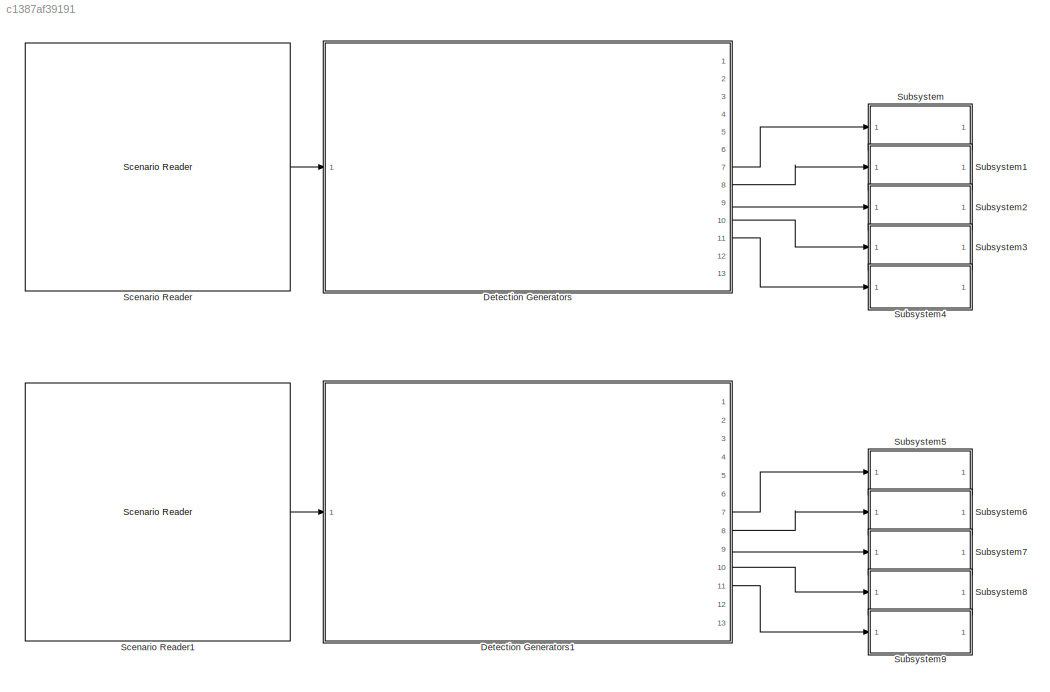
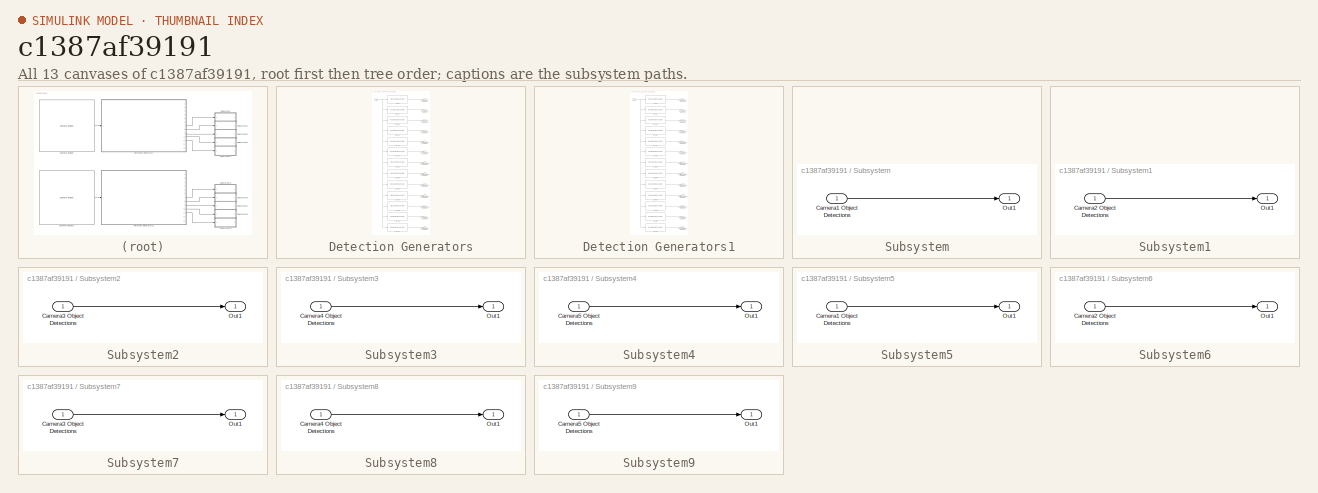
[diagram: thumbnail index - all 13 canvases of the model, root first then tree order]
MODEL slx_c1387af39191
KIND model
CONFIG AbsTol = auto
CONFIG EnableMultiTasking = off
CONFIG FixedStep = auto
CONFIG MaxStep = auto
CONFIG MinStep = auto
CONFIG RelTol = 1e-3
CONFIG SampleTimeConstraint = Unconstrained
CONFIG Solver = FixedStepDiscrete
CONFIG SolverName = FixedStepDiscrete
CONFIG StartTime = 0.0
CONFIG StopTime = 20
WORKSPACE source: mxarray member
WORKSPACE firstWarning = 0
WORKSPACE originalScenarioChecksum = '4AECC2AEC181DD8EA774641D9E64C004'
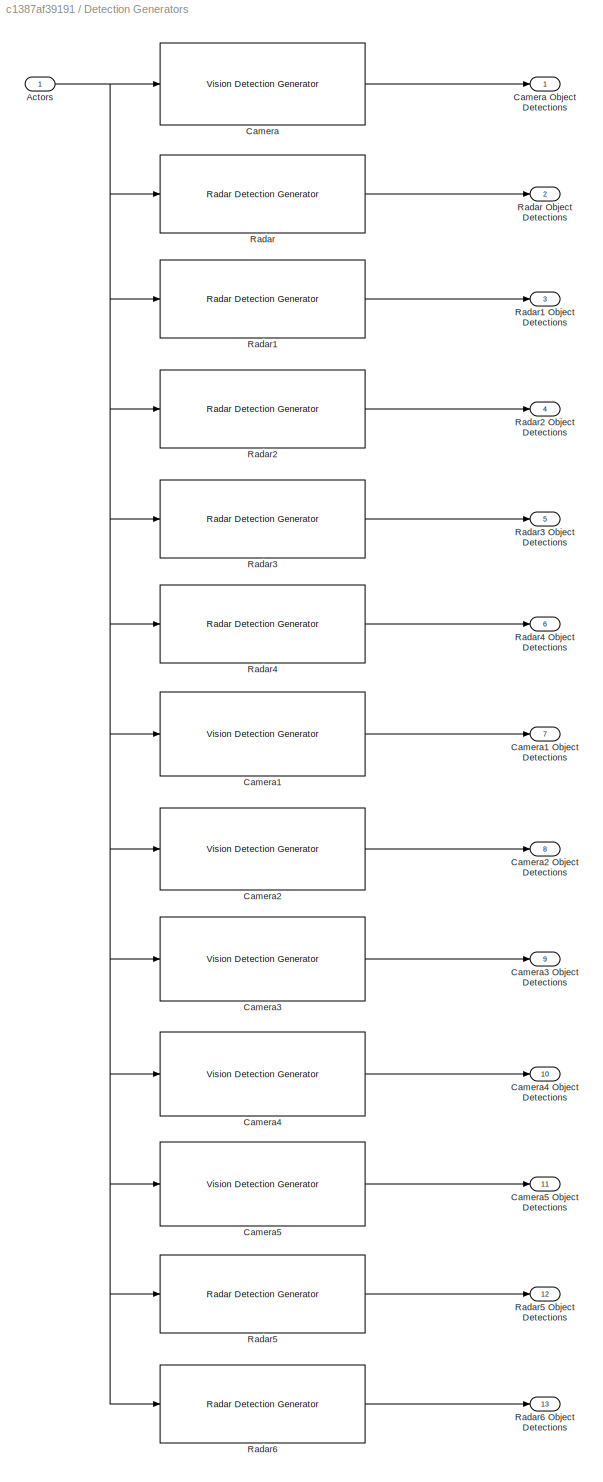
BLOCK [SubSystem] Detection Generators
  Ports = [1, 13]
  RequestExecContextInheritance = off
BLOCK [Inport] Detection Generators/Actors
BLOCK [Reference] Detection Generators/Camera  REF=drivingscenarioandsensors/Vision Detection Generator
  Ports = [1, 1]
  SourceBlock = drivingscenarioandsensors/Vision Detection Generator
  SourceProductBaseCode = DR
  SourceType = visionDetectionGenerator
BLOCK [Outport] Detection Generators/Camera Object Detections
BLOCK [Reference] Detection Generators/Camera1  REF=drivingscenarioandsensors/Vision Detection Generator
  Ports = [1, 1]
  SourceBlock = drivingscenarioandsensors/Vision Detection Generator
  SourceProductBaseCode = DR
  SourceType = visionDetectionGenerator
BLOCK [Outport] Detection Generators/Camera1 Object Detections
  Port = 7
BLOCK [Reference] Detection Generators/Camera2  REF=drivingscenarioandsensors/Vision Detection Generator
  Ports = [1, 1]
  SourceBlock = drivingscenarioandsensors/Vision Detection Generator
  SourceProductBaseCode = DR
  SourceType = visionDetectionGenerator
BLOCK [Outport] Detection Generators/Camera2 Object Detections
  Port = 8
BLOCK [Reference] Detection Generators/Camera3  REF=drivingscenarioandsensors/Vision Detection Generator
  Ports = [1, 1]
  SourceBlock = drivingscenarioandsensors/Vision Detection Generator
  SourceProductBaseCode = DR
  SourceType = visionDetectionGenerator
BLOCK [Outport] Detection Generators/Camera3 Object Detections
  Port = 9
BLOCK [Reference] Detection Generators/Camera4  REF=drivingscenarioandsensors/Vision Detection Generator
  Ports = [1, 1]
  SourceBlock = drivingscenarioandsensors/Vision Detection Generator
  SourceProductBaseCode = DR
  SourceType = visionDetectionGenerator
BLOCK [Outport] Detection Generators/Camera4 Object Detections
  Port = 10
BLOCK [Reference] Detection Generators/Camera5  REF=drivingscenarioandsensors/Vision Detection Generator
  Ports = [1, 1]
  SourceBlock = drivingscenarioandsensors/Vision Detection Generator
  SourceProductBaseCode = DR
  SourceType = visionDetectionGenerator
BLOCK [Outport] Detection Generators/Camera5 Object Detections
  Port = 11
BLOCK [Reference] Detection Generators/Radar  REF=drivingscenarioandsensors/Radar Detection Generator
  Ports = [1, 1]
  SourceBlock = drivingscenarioandsensors/Radar Detection Generator
  SourceProductBaseCode = DR
  SourceType = radarDetectionGenerator
BLOCK [Outport] Detection Generators/Radar Object Detections
  Port = 2
BLOCK [Reference] Detection Generators/Radar1  REF=drivingscenarioandsensors/Radar Detection Generator
  Ports = [1, 1]
  SourceBlock = drivingscenarioandsensors/Radar Detection Generator
  SourceProductBaseCode = DR
  SourceType = radarDetectionGenerator
BLOCK [Outport] Detection Generators/Radar1 Object Detections
  Port = 3
BLOCK [Reference] Detection Generators/Radar2  REF=drivingscenarioandsensors/Radar Detection Generator
  Ports = [1, 1]
  SourceBlock = drivingscenarioandsensors/Radar Detection Generator
  SourceProductBaseCode = DR
  SourceType = radarDetectionGenerator
BLOCK [Outport] Detection Generators/Radar2 Object Detections
  Port = 4
BLOCK [Reference] Detection Generators/Radar3  REF=drivingscenarioandsensors/Radar Detection Generator
  Ports = [1, 1]
  SourceBlock = drivingscenarioandsensors/Radar Detection Generator
  SourceProductBaseCode = DR
  SourceType = radarDetectionGenerator
BLOCK [Outport] Detection Generators/Radar3 Object Detections
  Port = 5
BLOCK [Reference] Detection Generators/Radar4  REF=drivingscenarioandsensors/Radar Detection Generator
  Ports = [1, 1]
  SourceBlock = drivingscenarioandsensors/Radar Detection Generator
  SourceProductBaseCode = DR
  SourceType = radarDetectionGenerator
BLOCK [Outport] Detection Generators/Radar4 Object Detections
  Port = 6
BLOCK [Reference] Detection Generators/Radar5  REF=drivingscenarioandsensors/Radar Detection Generator
  Ports = [1, 1]
  SourceBlock = drivingscenarioandsensors/Radar Detection Generator
  SourceProductBaseCode = DR
  SourceType = radarDetectionGenerator
BLOCK [Outport] Detection Generators/Radar5 Object Detections
  Port = 12
BLOCK [Reference] Detection Generators/Radar6  REF=drivingscenarioandsensors/Radar Detection Generator
  Ports = [1, 1]
  SourceBlock = drivingscenarioandsensors/Radar Detection Generator
  SourceProductBaseCode = DR
  SourceType = radarDetectionGenerator
BLOCK [Outport] Detection Generators/Radar6 Object Detections
  Port = 13
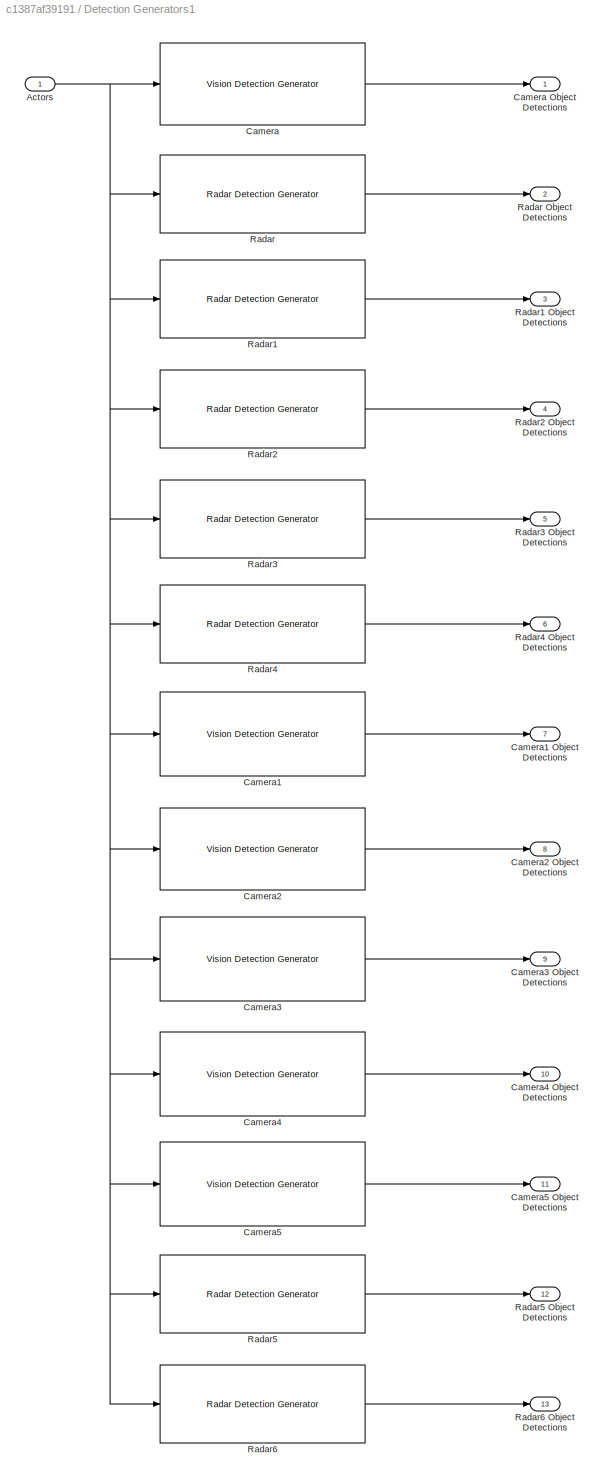
BLOCK [SubSystem] Detection Generators1
  Ports = [1, 13]
  RequestExecContextInheritance = off
BLOCK [Inport] Detection Generators1/Actors
BLOCK [Reference] Detection Generators1/Camera  REF=drivingscenarioandsensors/Vision Detection Generator
  Ports = [1, 1]
  SourceBlock = drivingscenarioandsensors/Vision Detection Generator
  SourceProductBaseCode = DR
  SourceType = visionDetectionGenerator
BLOCK [Outport] Detection Generators1/Camera Object Detections
BLOCK [Reference] Detection Generators1/Camera1  REF=drivingscenarioandsensors/Vision Detection Generator
  Ports = [1, 1]
  SourceBlock = drivingscenarioandsensors/Vision Detection Generator
  SourceProductBaseCode = DR
  SourceType = visionDetectionGenerator
BLOCK [Outport] Detection Generators1/Camera1 Object Detections
  Port = 7
BLOCK [Reference] Detection Generators1/Camera2  REF=drivingscenarioandsensors/Vision Detection Generator
  Ports = [1, 1]
  SourceBlock = drivingscenarioandsensors/Vision Detection Generator
  SourceProductBaseCode = DR
  SourceType = visionDetectionGenerator
BLOCK [Outport] Detection Generators1/Camera2 Object Detections
  Port = 8
BLOCK [Reference] Detection Generators1/Camera3  REF=drivingscenarioandsensors/Vision Detection Generator
  Ports = [1, 1]
  SourceBlock = drivingscenarioandsensors/Vision Detection Generator
  SourceProductBaseCode = DR
  SourceType = visionDetectionGenerator
BLOCK [Outport] Detection Generators1/Camera3 Object Detections
  Port = 9
BLOCK [Reference] Detection Generators1/Camera4  REF=drivingscenarioandsensors/Vision Detection Generator
  Ports = [1, 1]
  SourceBlock = drivingscenarioandsensors/Vision Detection Generator
  SourceProductBaseCode = DR
  SourceType = visionDetectionGenerator
BLOCK [Outport] Detection Generators1/Camera4 Object Detections
  Port = 10
BLOCK [Reference] Detection Generators1/Camera5  REF=drivingscenarioandsensors/Vision Detection Generator
  Ports = [1, 1]
  SourceBlock = drivingscenarioandsensors/Vision Detection Generator
  SourceProductBaseCode = DR
  SourceType = visionDetectionGenerator
BLOCK [Outport] Detection Generators1/Camera5 Object Detections
  Port = 11
BLOCK [Reference] Detection Generators1/Radar  REF=drivingscenarioandsensors/Radar Detection Generator
  Ports = [1, 1]
  SourceBlock = drivingscenarioandsensors/Radar Detection Generator
  SourceProductBaseCode = DR
  SourceType = radarDetectionGenerator
BLOCK [Outport] Detection Generators1/Radar Object Detections
  Port = 2
BLOCK [Reference] Detection Generators1/Radar1  REF=drivingscenarioandsensors/Radar Detection Generator
  Ports = [1, 1]
  SourceBlock = drivingscenarioandsensors/Radar Detection Generator
  SourceProductBaseCode = DR
  SourceType = radarDetectionGenerator
BLOCK [Outport] Detection Generators1/Radar1 Object Detections
  Port = 3
BLOCK [Reference] Detection Generators1/Radar2  REF=drivingscenarioandsensors/Radar Detection Generator
  Ports = [1, 1]
  SourceBlock = drivingscenarioandsensors/Radar Detection Generator
  SourceProductBaseCode = DR
  SourceType = radarDetectionGenerator
BLOCK [Outport] Detection Generators1/Radar2 Object Detections
  Port = 4
BLOCK [Reference] Detection Generators1/Radar3  REF=drivingscenarioandsensors/Radar Detection Generator
  Ports = [1, 1]
  SourceBlock = drivingscenarioandsensors/Radar Detection Generator
  SourceProductBaseCode = DR
  SourceType = radarDetectionGenerator
BLOCK [Outport] Detection Generators1/Radar3 Object Detections
  Port = 5
BLOCK [Reference] Detection Generators1/Radar4  REF=drivingscenarioandsensors/Radar Detection Generator
  Ports = [1, 1]
  SourceBlock = drivingscenarioandsensors/Radar Detection Generator
  SourceProductBaseCode = DR
  SourceType = radarDetectionGenerator
BLOCK [Outport] Detection Generators1/Radar4 Object Detections
  Port = 6
BLOCK [Reference] Detection Generators1/Radar5  REF=drivingscenarioandsensors/Radar Detection Generator
  Ports = [1, 1]
  SourceBlock = drivingscenarioandsensors/Radar Detection Generator
  SourceProductBaseCode = DR
  SourceType = radarDetectionGenerator
BLOCK [Outport] Detection Generators1/Radar5 Object Detections
  Port = 12
BLOCK [Reference] Detection Generators1/Radar6  REF=drivingscenarioandsensors/Radar Detection Generator
  Ports = [1, 1]
  SourceBlock = drivingscenarioandsensors/Radar Detection Generator
  SourceProductBaseCode = DR
  SourceType = radarDetectionGenerator
BLOCK [Outport] Detection Generators1/Radar6 Object Detections
  Port = 13
BLOCK [Reference] Scenario Reader  REF=drivingscenarioandsensors/Scenario Reader
  Ports = [0, 1]
  SourceBlock = drivingscenarioandsensors/Scenario Reader
  SourceProductBaseCode = DR
  SourceType = driving.scenario.internal.ScenarioReader
BLOCK [Reference] Scenario Reader1  REF=drivingscenarioandsensors/Scenario Reader
  Ports = [0, 1]
  SourceBlock = drivingscenarioandsensors/Scenario Reader
  SourceProductBaseCode = DR
  SourceType = driving.scenario.internal.ScenarioReader
BLOCK [SubSystem] Subsystem
  Ports = [1, 1]
  RequestExecContextInheritance = off
BLOCK [Inport] Subsystem/Camera1 Object Detections
BLOCK [Outport] Subsystem/Out1
BLOCK [SubSystem] Subsystem1
  Ports = [1, 1]
  RequestExecContextInheritance = off
BLOCK [Inport] Subsystem1/Camera2 Object Detections
BLOCK [Outport] Subsystem1/Out1
BLOCK [SubSystem] Subsystem2
  Ports = [1, 1]
  RequestExecContextInheritance = off
BLOCK [Inport] Subsystem2/Camera3 Object Detections
BLOCK [Outport] Subsystem2/Out1
BLOCK [SubSystem] Subsystem3
  Ports = [1, 1]
  RequestExecContextInheritance = off
BLOCK [Inport] Subsystem3/Camera4 Object Detections
BLOCK [Outport] Subsystem3/Out1
BLOCK [SubSystem] Subsystem4
  Ports = [1, 1]
  RequestExecContextInheritance = off
BLOCK [Inport] Subsystem4/Camera5 Object Detections
BLOCK [Outport] Subsystem4/Out1
BLOCK [SubSystem] Subsystem5
  Ports = [1, 1]
  RequestExecContextInheritance = off
BLOCK [Inport] Subsystem5/Camera1 Object Detections
BLOCK [Outport] Subsystem5/Out1
BLOCK [SubSystem] Subsystem6
  Ports = [1, 1]
  RequestExecContextInheritance = off
BLOCK [Inport] Subsystem6/Camera2 Object Detections
BLOCK [Outport] Subsystem6/Out1
BLOCK [SubSystem] Subsystem7
  Ports = [1, 1]
  RequestExecContextInheritance = off
BLOCK [Inport] Subsystem7/Camera3 Object Detections
BLOCK [Outport] Subsystem7/Out1
BLOCK [SubSystem] Subsystem8
  Ports = [1, 1]
  RequestExecContextInheritance = off
BLOCK [Inport] Subsystem8/Camera4 Object Detections
BLOCK [Outport] Subsystem8/Out1
BLOCK [SubSystem] Subsystem9
  Ports = [1, 1]
  RequestExecContextInheritance = off
BLOCK [Inport] Subsystem9/Camera5 Object Detections
BLOCK [Outport] Subsystem9/Out1
NET Detection Generators/Actors:1 -> Detection Generators/Camera1:1, Detection Generators/Camera2:1, Detection Generators/Camera3:1, Detection Generators/Camera4:1, Detection Generators/Camera5:1, Detection Generators/Camera:1, Detection Generators/Radar1:1, Detection Generators/Radar2:1, Detection Generators/Radar3:1, Detection Generators/Radar4:1, Detection Generators/Radar5:1, Detection Generators/Radar6:1, Detection Generators/Radar:1
LINE Detection Generators/Camera1:1 -> Detection Generators/Camera1 Object Detections:1
LINE Detection Generators/Camera2:1 -> Detection Generators/Camera2 Object Detections:1
LINE Detection Generators/Camera3:1 -> Detection Generators/Camera3 Object Detections:1
LINE Detection Generators/Camera4:1 -> Detection Generators/Camera4 Object Detections:1
LINE Detection Generators/Camera5:1 -> Detection Generators/Camera5 Object Detections:1
LINE Detection Generators/Camera:1 -> Detection Generators/Camera Object Detections:1
LINE Detection Generators/Radar1:1 -> Detection Generators/Radar1 Object Detections:1
LINE Detection Generators/Radar2:1 -> Detection Generators/Radar2 Object Detections:1
LINE Detection Generators/Radar3:1 -> Detection Generators/Radar3 Object Detections:1
LINE Detection Generators/Radar4:1 -> Detection Generators/Radar4 Object Detections:1
LINE Detection Generators/Radar5:1 -> Detection Generators/Radar5 Object Detections:1
LINE Detection Generators/Radar6:1 -> Detection Generators/Radar6 Object Detections:1
LINE Detection Generators/Radar:1 -> Detection Generators/Radar Object Detections:1
NET Detection Generators1/Actors:1 -> Detection Generators1/Camera1:1, Detection Generators1/Camera2:1, Detection Generators1/Camera3:1, Detection Generators1/Camera4:1, Detection Generators1/Camera5:1, Detection Generators1/Camera:1, Detection Generators1/Radar1:1, Detection Generators1/Radar2:1, Detection Generators1/Radar3:1, Detection Generators1/Radar4:1, Detection Generators1/Radar5:1, Detection Generators1/Radar6:1, Detection Generators1/Radar:1
LINE Detection Generators1/Camera1:1 -> Detection Generators1/Camera1 Object Detections:1
LINE Detection Generators1/Camera2:1 -> Detection Generators1/Camera2 Object Detections:1
LINE Detection Generators1/Camera3:1 -> Detection Generators1/Camera3 Object Detections:1
LINE Detection Generators1/Camera4:1 -> Detection Generators1/Camera4 Object Detections:1
LINE Detection Generators1/Camera5:1 -> Detection Generators1/Camera5 Object Detections:1
LINE Detection Generators1/Camera:1 -> Detection Generators1/Camera Object Detections:1
LINE Detection Generators1/Radar1:1 -> Detection Generators1/Radar1 Object Detections:1
LINE Detection Generators1/Radar2:1 -> Detection Generators1/Radar2 Object Detections:1
LINE Detection Generators1/Radar3:1 -> Detection Generators1/Radar3 Object Detections:1
LINE Detection Generators1/Radar4:1 -> Detection Generators1/Radar4 Object Detections:1
LINE Detection Generators1/Radar5:1 -> Detection Generators1/Radar5 Object Detections:1
LINE Detection Generators1/Radar6:1 -> Detection Generators1/Radar6 Object Detections:1
LINE Detection Generators1/Radar:1 -> Detection Generators1/Radar Object Detections:1
LINE Detection Generators1:10 -> Subsystem8:1
LINE Detection Generators1:11 -> Subsystem9:1
LINE Detection Generators1:7 -> Subsystem5:1
LINE Detection Generators1:8 -> Subsystem6:1
LINE Detection Generators1:9 -> Subsystem7:1
LINE Detection Generators:10 -> Subsystem3:1
LINE Detection Generators:11 -> Subsystem4:1
LINE Detection Generators:7 -> Subsystem:1
LINE Detection Generators:8 -> Subsystem1:1
LINE Detection Generators:9 -> Subsystem2:1
LINE Scenario Reader1:1 -> Detection Generators1:1
LINE Scenario Reader:1 -> Detection Generators:1
LINE Subsystem/Camera1 Object Detections:1 -> Subsystem/Out1:1
LINE Subsystem1/Camera2 Object Detections:1 -> Subsystem1/Out1:1
LINE Subsystem2/Camera3 Object Detections:1 -> Subsystem2/Out1:1
LINE Subsystem3/Camera4 Object Detections:1 -> Subsystem3/Out1:1
LINE Subsystem4/Camera5 Object Detections:1 -> Subsystem4/Out1:1
LINE Subsystem5/Camera1 Object Detections:1 -> Subsystem5/Out1:1
LINE Subsystem6/Camera2 Object Detections:1 -> Subsystem6/Out1:1
LINE Subsystem7/Camera3 Object Detections:1 -> Subsystem7/Out1:1
LINE Subsystem8/Camera4 Object Detections:1 -> Subsystem8/Out1:1
LINE Subsystem9/Camera5 Object Detections:1 -> Subsystem9/Out1:1
note: NET lines group one-source signal fan-out (src -> all destinations, sorted); 1:1 wires keep LINE
